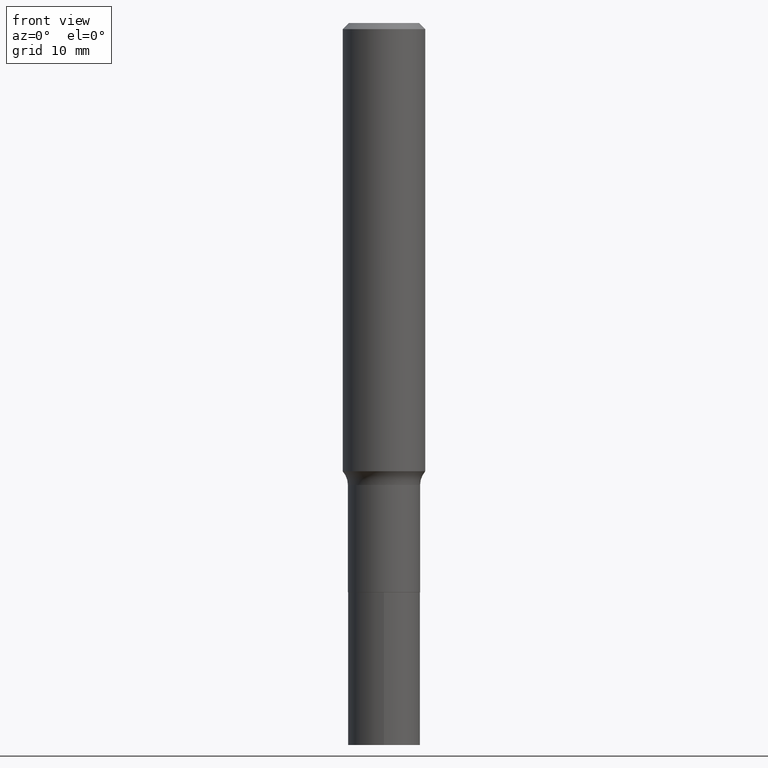
[diagram: clean part render]
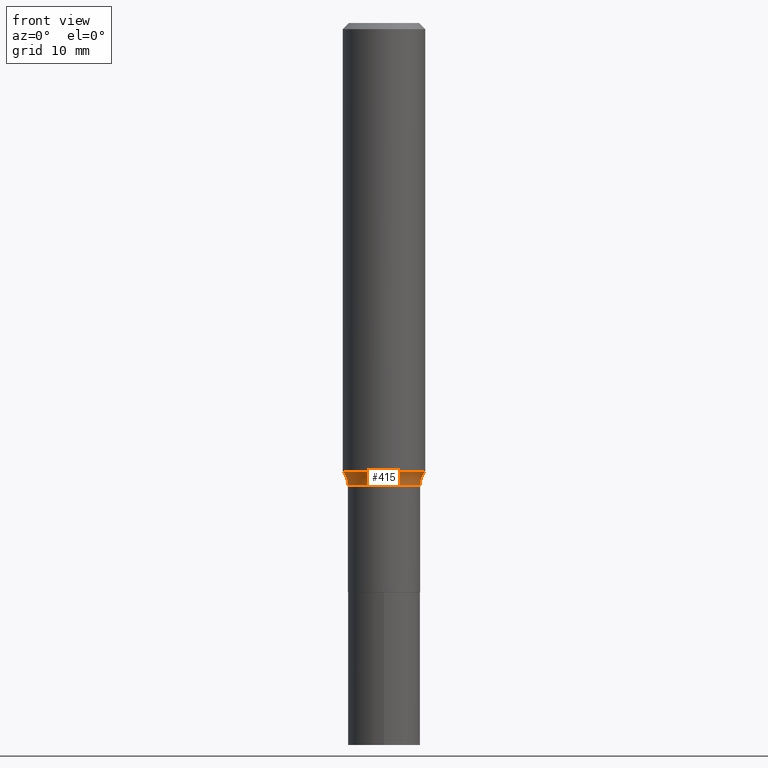
[diagram: same view with one face highlighted and labeled with its STEP entity id]
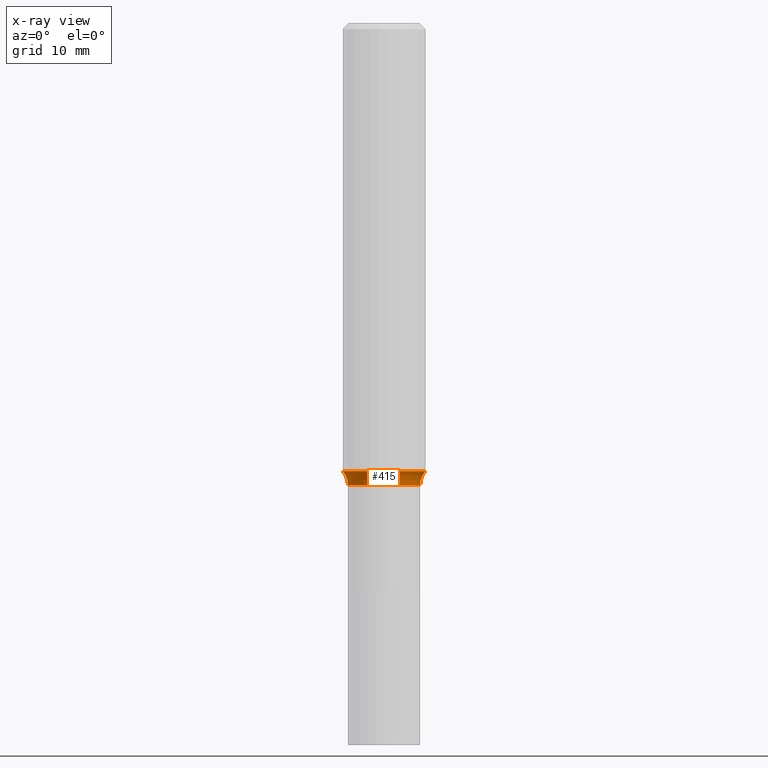
[diagram: x-ray of the same camera — body ghosted, the highlighted face saturated]
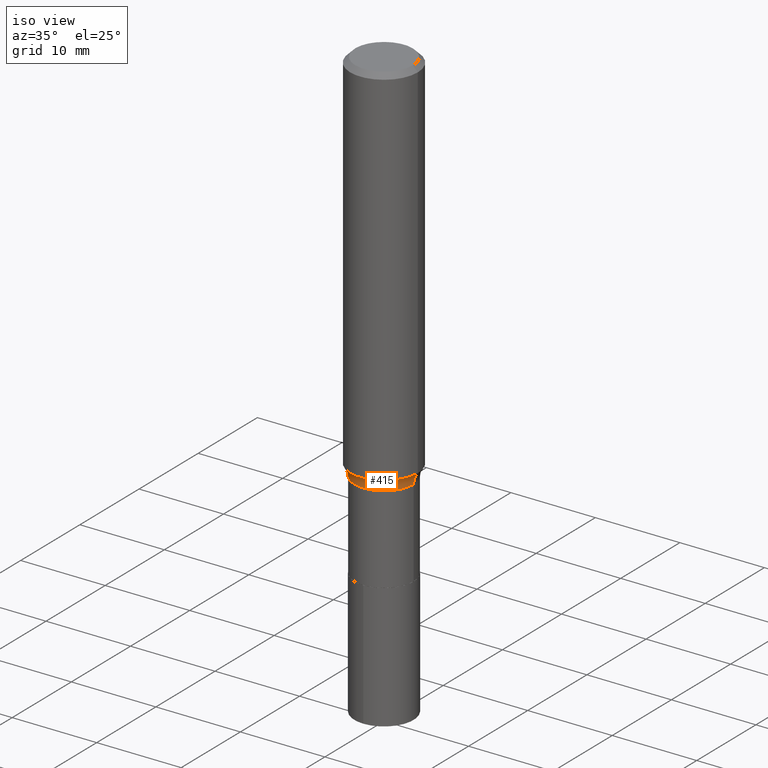
[diagram: same view with one face highlighted and labeled with its STEP entity id]
A machine part, front view. The second image highlights one B-rep face of the part: STEP entity #415.
The next image is the same camera in x-ray: the body ghosted, the highlighted face saturated — about 0% of this face is hidden behind the body in this view.
A second angle (iso view) of the same face is appended — the face is thin or edge-on in the first view.
In plain terms, the highlighted toroidal blend (fillet) surface has major radius 5.5321 mm and minor (blend) radius 2.032 mm.
Its self-contained STEP definition (entity closure, byte-faithful):
#10 = VERTEX_POINT ( 'NONE', #20 ) ;
#12 = CARTESIAN_POINT ( 'NONE',  ( 4.312828786588107303E-29, -6.157576489183771935E-15, -1.763600000000000056 ) ) ;
#17 = ORIENTED_EDGE ( 'NONE', *, *, #304, .F. ) ;
#20 = CARTESIAN_POINT ( 'NONE',  ( -0.1377999999999999781, -5.892107384965892698E-15, -1.763600000000000056 ) ) ;
#30 = AXIS2_PLACEMENT_3D ( 'NONE', #111, #142, #397 ) ;
#48 = AXIS2_PLACEMENT_3D ( 'NONE', #12, #153, #291 ) ;
#50 = EDGE_LOOP ( 'NONE', ( #241, #55, #195, #17 ) ) ;
#55 = ORIENTED_EDGE ( 'NONE', *, *, #465, .T. ) ;
#76 = CARTESIAN_POINT ( 'NONE',  ( 0.1377999999999999781, -7.119828746168939412E-15, -1.763600000000000056 ) ) ;
#104 = DIRECTION ( 'NONE',  ( 1.000000000000000000, -6.982962677686265922E-15, 0.000000000000000000 ) ) ;
#106 = TOROIDAL_SURFACE ( 'NONE', #445, 0.2177999999999999936, 0.08000000000000009881 ) ;
#111 = CARTESIAN_POINT ( 'NONE',  ( -0.2177999999999999936, -4.610014410698272986E-15, -1.763600000000000056 ) ) ;
#126 = CIRCLE ( 'NONE', #380, 0.1575000000000001954 ) ;
#142 = DIRECTION ( 'NONE',  ( 7.105427357601001859E-15, 1.000000000000000000, -3.491481338843145583E-15 ) ) ;
#145 = CARTESIAN_POINT ( 'NONE',  ( 0.2177999999999999936, -7.678465760383841064E-15, -1.763600000000000056 ) ) ;
#153 = DIRECTION ( 'NONE',  ( -2.445468806185136597E-29, 3.491481338843145583E-15, 1.000000000000000000 ) ) ;
#186 = CIRCLE ( 'NONE', #30, 0.08000000000000009881 ) ;
#195 = ORIENTED_EDGE ( 'NONE', *, *, #411, .T. ) ;
#199 = DIRECTION ( 'NONE',  ( 1.000000000000000000, -6.982962677686267499E-15, 4.883557194083112901E-29 ) ) ;
#217 = CIRCLE ( 'NONE', #419, 0.08000000000000009881 ) ;
#219 = DIRECTION ( 'NONE',  ( -6.982962677686266711E-15, -1.000000000000000000, 3.491481338843145583E-15 ) ) ;
#227 = VERTEX_POINT ( 'NONE', #400 ) ;
#233 = CARTESIAN_POINT ( 'NONE',  ( 4.312828786588107303E-29, -6.157576489183771935E-15, -1.763600000000000056 ) ) ;
#241 = ORIENTED_EDGE ( 'NONE', *, *, #244, .F. ) ;
#244 = EDGE_CURVE ( 'NONE', #412, #227, #126, .T. ) ;
#268 = DIRECTION ( 'NONE',  ( -2.445468806185136597E-29, 3.491481338843145583E-15, 1.000000000000000000 ) ) ;
#277 = CARTESIAN_POINT ( 'NONE',  ( 4.184263395270983918E-29, -5.974019183742183514E-15, -1.711027098234926713 ) ) ;
#291 = DIRECTION ( 'NONE',  ( 1.000000000000000000, -6.982962677686267499E-15, 0.000000000000000000 ) ) ;
#304 = EDGE_CURVE ( 'NONE', #227, #312, #217, .T. ) ;
#312 = VERTEX_POINT ( 'NONE', #76 ) ;
#349 = FACE_OUTER_BOUND ( 'NONE', #50, .T. ) ;
#380 = AXIS2_PLACEMENT_3D ( 'NONE', #277, #466, #104 ) ;
#396 = DIRECTION ( 'NONE',  ( 1.000000000000000000, -6.982962677686263555E-15, 0.000000000000000000 ) ) ;
#397 = DIRECTION ( 'NONE',  ( -1.000000000000000000, 7.105427357601001859E-15, 0.000000000000000000 ) ) ;
#400 = CARTESIAN_POINT ( 'NONE',  ( 0.1575000000000002787, -7.073835805477772572E-15, -1.711027098234926713 ) ) ;
#404 = CIRCLE ( 'NONE', #48, 0.1377999999999999781 ) ;
#411 = EDGE_CURVE ( 'NONE', #10, #312, #404, .T. ) ;
#412 = VERTEX_POINT ( 'NONE', #444 ) ;
#415 = ADVANCED_FACE ( 'NONE', ( #349 ), #106, .F. ) ;
#419 = AXIS2_PLACEMENT_3D ( 'NONE', #145, #219, #396 ) ;
#444 = CARTESIAN_POINT ( 'NONE',  ( -0.1575000000000002787, -4.854914374920024333E-15, -1.711027098234926713 ) ) ;
#445 = AXIS2_PLACEMENT_3D ( 'NONE', #233, #268, #199 ) ;
#465 = EDGE_CURVE ( 'NONE', #412, #10, #186, .T. ) ;
#466 = DIRECTION ( 'NONE',  ( -2.445468806185136597E-29, 3.491481338843145583E-15, 1.000000000000000000 ) ) ;